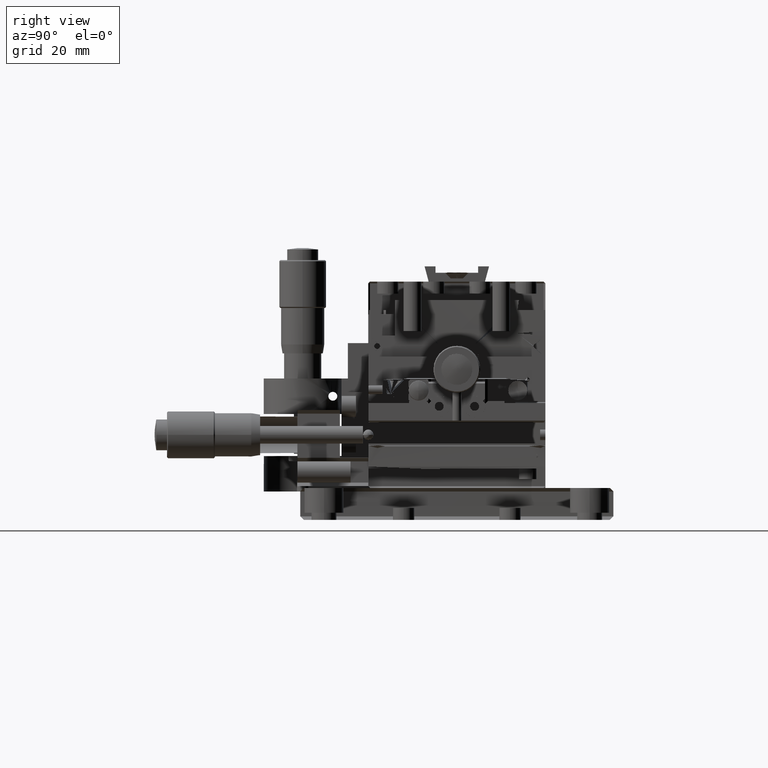
[diagram: clean part render]
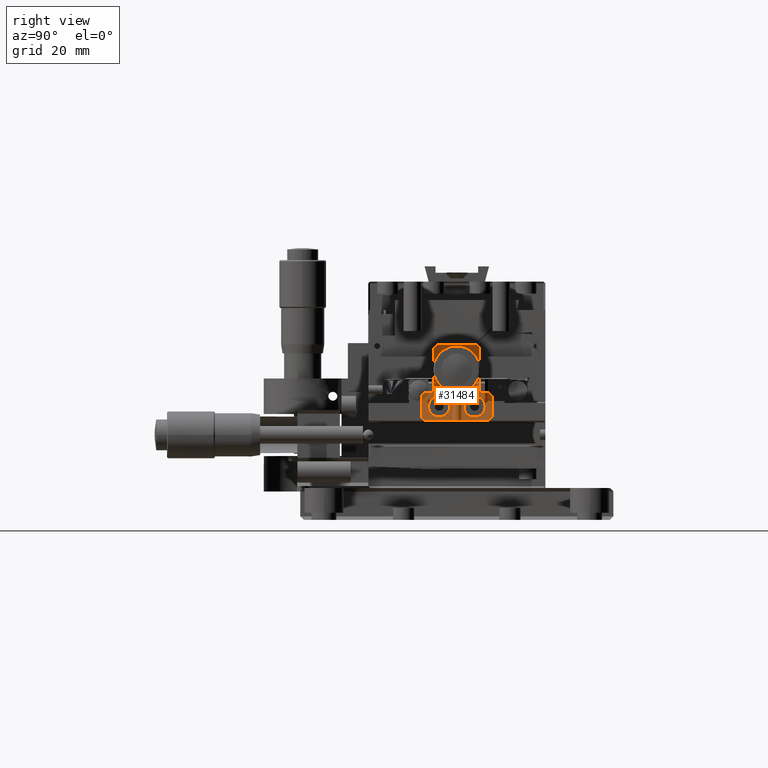
[diagram: same view with one face highlighted and labeled with its STEP entity id]
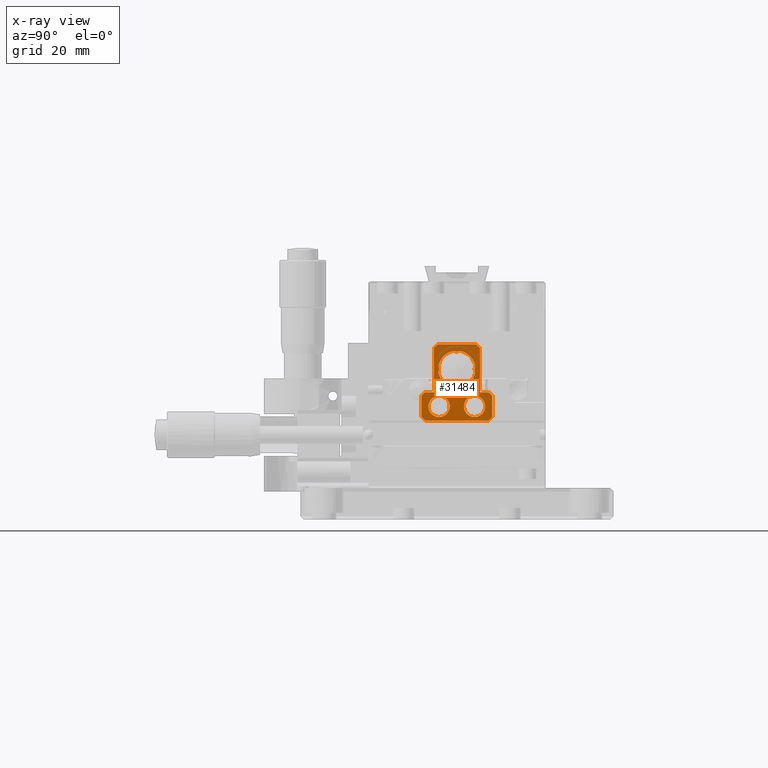
[diagram: x-ray of the same camera — body ghosted, the highlighted face saturated]
A machine part, right view. The second image highlights one B-rep face of the part: STEP entity #31484.
The next image is the same camera in x-ray: the body ghosted, the highlighted face saturated — about 27% of this face is hidden behind the body in this view.
In plain terms, the highlighted face is a freeform B-spline surface patch.
Its self-contained STEP definition (entity closure, byte-faithful):
#268 = B_SPLINE_CURVE_WITH_KNOTS ( 'NONE', 1,
 ( #7535, #10712 ),
 .UNSPECIFIED., .F., .F.,
 ( 2, 2 ),
 ( 0.000000000000000000, 1.000000000000000000 ),
 .UNSPECIFIED. ) ;
#425 = CARTESIAN_POINT ( 'NONE',  ( 55.41923232115960474, -7.999282571865960811, 27.07812786181560227 ) ) ;
#737 = EDGE_LOOP ( 'NONE', ( #13253, #18441 ) ) ;
#942 = CARTESIAN_POINT ( 'NONE',  ( 55.41923232115960474, -7.499282575016770203, 20.07815523999374818 ) ) ;
#1048 = CARTESIAN_POINT ( 'NONE',  ( 55.41923232115960474, -8.999282571865959923, 26.07812786181560227 ) ) ;
#1174 = CARTESIAN_POINT ( 'NONE',  ( 55.41923232115960474, 6.500717428134040077, 13.57812786181560050 ) ) ;
#1583 = CARTESIAN_POINT ( 'NONE',  ( 55.41923232115960474, -0.4992825718659559264, 9.578127861815600497 ) ) ;
#2019 = B_SPLINE_CURVE_WITH_KNOTS ( 'NONE', 1,
 ( #8632, #44208 ),
 .UNSPECIFIED., .F., .F.,
 ( 2, 2 ),
 ( 0.000000000000000000, 1.000000000000000000 ),
 .UNSPECIFIED. ) ;
#2088 = CARTESIAN_POINT ( 'NONE',  ( 55.41923232115960474, 5.500717428134040077, 9.578127861815600497 ) ) ;
#2198 = ORIENTED_EDGE ( 'NONE', *, *, #19940, .F. ) ;
#2590 = B_SPLINE_CURVE_WITH_KNOTS ( 'NONE', 1,
 ( #33611, #36755 ),
 .UNSPECIFIED., .F., .F.,
 ( 2, 2 ),
 ( 0.000000000000000000, 1.000000000000000000 ),
 .UNSPECIFIED. ) ;
#2881 = CARTESIAN_POINT ( 'NONE',  ( 55.41923232115960474, 2.750717428134039633, 20.07812786181559872 ) ) ;
#2954 = VERTEX_POINT ( 'NONE', #25672 ) ;
#3856 = EDGE_CURVE ( 'NONE', #23249, #31476, #27381, .T. ) ;
#3991 = CARTESIAN_POINT ( 'NONE',  ( 55.41923232115960474, -7.999282571865960811, 27.07812786181560227 ) ) ;
#4700 = CARTESIAN_POINT ( 'NONE',  ( 55.41923232115958342, -5.999282571865961700, 14.82812786181560405 ) ) ;
#5207 =( BOUNDED_CURVE ( )  B_SPLINE_CURVE ( 3, ( #41753, #28171, #10692, #24539 ),
 .UNSPECIFIED., .F., .F. ) 
 B_SPLINE_CURVE_WITH_KNOTS ( ( 4, 4 ),
 ( 0.000000000000000000, 1.000000000000000000 ),
 .UNSPECIFIED. ) 
 CURVE ( )  GEOMETRIC_REPRESENTATION_ITEM ( )  RATIONAL_B_SPLINE_CURVE ( ( 1.000000000000000000, 0.3333333333333329818, 0.3333333333333329818, 1.000000000000000000 ) ) 
 REPRESENTATION_ITEM ( '' )  );
#5702 = CARTESIAN_POINT ( 'NONE',  ( 55.41923232115960474, 3.000717428134029863, 27.07812786181560227 ) ) ;
#5775 = ORIENTED_EDGE ( 'NONE', *, *, #23377, .F. ) ;
#5938 = VERTEX_POINT ( 'NONE', #23898 ) ;
#6062 = CARTESIAN_POINT ( 'NONE',  ( 55.41923232115958342, -2.499282571865961255, 14.82812786181560405 ) ) ;
#6148 = FACE_OUTER_BOUND ( 'NONE', #39148, .T. ) ;
#6374 = CARTESIAN_POINT ( 'NONE',  ( 55.41923232115960474, -12.49928257186600078, 5.578127861815599609 ) ) ;
#6569 = CARTESIAN_POINT ( 'NONE',  ( 55.41923232115959053, -5.999282571865962588, 25.32812786181559872 ) ) ;
#7535 = CARTESIAN_POINT ( 'NONE',  ( 55.41923232115960474, 4.000717428134040077, 13.57812786181560050 ) ) ;
#7971 = CARTESIAN_POINT ( 'NONE',  ( 55.41923232115960474, 2.500717431284845027, 20.07810048363744926 ) ) ;
#8134 = CARTESIAN_POINT ( 'NONE',  ( 55.41923232115960474, 5.500717428134040077, 9.578127861815600497 ) ) ;
#8155 = EDGE_CURVE ( 'NONE', #20123, #12576, #2590, .T. ) ;
#8462 = CARTESIAN_POINT ( 'NONE',  ( 55.41923232115960474, 3.000717428134029863, 27.07812786181560227 ) ) ;
#8540 = ORIENTED_EDGE ( 'NONE', *, *, #11373, .F. ) ;
#8632 = CARTESIAN_POINT ( 'NONE',  ( 55.41923232115960474, 7.500717428134040077, 6.578127861815609378 ) ) ;
#9220 = CARTESIAN_POINT ( 'NONE',  ( 55.41923232115956210, 5.500717428134030307, 3.578127861815613819 ) ) ;
#9292 = CARTESIAN_POINT ( 'NONE',  ( 55.41923232115960474, -11.49928257186594038, 5.578127861815599609 ) ) ;
#9458 = CARTESIAN_POINT ( 'NONE',  ( 55.41923232115960474, -12.49928257186600078, 6.578127861815609378 ) ) ;
#9642 = CARTESIAN_POINT ( 'NONE',  ( 55.41923232115960474, 4.000717428134040077, 26.07812786181560227 ) ) ;
#9741 = EDGE_CURVE ( 'NONE', #27182, #14162, #21990, .T. ) ;
#9745 = CARTESIAN_POINT ( 'NONE',  ( 55.41923232115960474, 7.500717428134040077, 5.578127861815599609 ) ) ;
#9919 = CARTESIAN_POINT ( 'NONE',  ( 55.41923232115960474, -11.49928257186600078, 13.57812786181560050 ) ) ;
#9945 = CARTESIAN_POINT ( 'NONE',  ( 55.41923232115961184, -7.749282571865961700, 22.70312786181560227 ) ) ;
#10529 = VERTEX_POINT ( 'NONE', #31384 ) ;
#10614 = EDGE_CURVE ( 'NONE', #2954, #17161, #27532, .T. ) ;
#10692 = CARTESIAN_POINT ( 'NONE',  ( 55.41923232115956210, -4.499282571865959923, 15.57812786181559694 ) ) ;
#10712 = CARTESIAN_POINT ( 'NONE',  ( 55.41923232115960474, 4.000717428134040077, 26.07812786181560227 ) ) ;
#10873 = EDGE_CURVE ( 'NONE', #36618, #13635, #34326, .T. ) ;
#10893 = B_SPLINE_CURVE_WITH_KNOTS ( 'NONE', 1,
 ( #19788, #26359 ),
 .UNSPECIFIED., .F., .F.,
 ( 2, 2 ),
 ( -1.000000000000000000, 0.000000000000000000 ),
 .UNSPECIFIED. ) ;
#11373 = EDGE_CURVE ( 'NONE', #5938, #23249, #30005, .T. ) ;
#11643 = CARTESIAN_POINT ( 'NONE',  ( 55.41923232115960474, -8.999282571865959923, 13.57812786181560050 ) ) ;
#12170 = CARTESIAN_POINT ( 'NONE',  ( 55.41923232115958342, 1.000717428134039855, 14.82812786181560405 ) ) ;
#12576 = VERTEX_POINT ( 'NONE', #24778 ) ;
#12701 = FACE_BOUND ( 'NONE', #737, .T. ) ;
#13253 = ORIENTED_EDGE ( 'NONE', *, *, #28463, .F. ) ;
#13635 = VERTEX_POINT ( 'NONE', #9292 ) ;
#13716 =( BOUNDED_CURVE ( )  B_SPLINE_CURVE ( 3, ( #32542, #30443, #27039, #43580 ),
 .UNSPECIFIED., .F., .F. ) 
 B_SPLINE_CURVE_WITH_KNOTS ( ( 4, 4 ),
 ( 0.000000000000000000, 1.000000000000000000 ),
 .UNSPECIFIED. ) 
 CURVE ( )  GEOMETRIC_REPRESENTATION_ITEM ( )  RATIONAL_B_SPLINE_CURVE ( ( 1.000000000000000000, 0.3333333333333329818, 0.3333333333333329818, 1.000000000000000000 ) ) 
 REPRESENTATION_ITEM ( '' )  );
#13991 = CARTESIAN_POINT ( 'NONE',  ( 55.41923232115960474, 6.500717428134040077, 13.57812786181560050 ) ) ;
#14162 = VERTEX_POINT ( 'NONE', #29468 ) ;
#14716 = CARTESIAN_POINT ( 'NONE',  ( 55.41923232115960474, 6.500717428134029419, 5.578127861815609378 ) ) ;
#14856 = ORIENTED_EDGE ( 'NONE', *, *, #35187, .F. ) ;
#15785 = B_SPLINE_CURVE_WITH_KNOTS ( 'NONE', 1,
 ( #20883, #27231 ),
 .UNSPECIFIED., .F., .F.,
 ( 2, 2 ),
 ( 0.000000000000000000, 1.000000000000000000 ),
 .UNSPECIFIED. ) ;
#16742 = CARTESIAN_POINT ( 'NONE',  ( 55.41923232115960474, -7.749282571865959923, 20.07812786181559872 ) ) ;
#16990 = FACE_BOUND ( 'NONE', #38149, .T. ) ;
#17161 = VERTEX_POINT ( 'NONE', #2088 ) ;
#17167 = CARTESIAN_POINT ( 'NONE',  ( 55.41923232115960474, -12.49928257186600078, 12.57812786181559872 ) ) ;
#17672 = B_SPLINE_CURVE_WITH_KNOTS ( 'NONE', 1,
 ( #5702, #19524 ),
 .UNSPECIFIED., .F., .F.,
 ( 2, 2 ),
 ( -1.000000000000000000, 0.000000000000000000 ),
 .UNSPECIFIED. ) ;
#17890 = EDGE_CURVE ( 'NONE', #43300, #5938, #43018, .T. ) ;
#17896 = CARTESIAN_POINT ( 'NONE',  ( 55.41923232115960474, 7.500717428134040077, 12.57812786181559872 ) ) ;
#18092 =( BOUNDED_CURVE ( )  B_SPLINE_CURVE ( 3, ( #16742, #9945, #6569, #34209 ),
 .UNSPECIFIED., .F., .F. ) 
 B_SPLINE_CURVE_WITH_KNOTS ( ( 4, 4 ),
 ( 0.000000000000000000, 0.5000000000000000000 ),
 .UNSPECIFIED. ) 
 CURVE ( )  GEOMETRIC_REPRESENTATION_ITEM ( )  RATIONAL_B_SPLINE_CURVE ( ( 1.000000000000000000, 0.6666666666666665186, 0.4999999999999997780, 0.4999999999999997224 ) ) 
 REPRESENTATION_ITEM ( '' )  );
#18441 = ORIENTED_EDGE ( 'NONE', *, *, #19973, .F. ) ;
#18616 = ORIENTED_EDGE ( 'NONE', *, *, #26701, .F. ) ;
#18667 = CARTESIAN_POINT ( 'NONE',  ( 55.41923232115960474, -2.499282571865960367, 15.07812786181560050 ) ) ;
#18707 = EDGE_CURVE ( 'NONE', #30119, #43871, #40326, .T. ) ;
#19157 = ORIENTED_EDGE ( 'NONE', *, *, #3856, .F. ) ;
#19208 = ORIENTED_EDGE ( 'NONE', *, *, #41097, .F. ) ;
#19482 = EDGE_CURVE ( 'NONE', #26091, #42158, #18092, .T. ) ;
#19524 = CARTESIAN_POINT ( 'NONE',  ( 55.41923232115960474, -7.999282571865960811, 27.07812786181560227 ) ) ;
#19788 = CARTESIAN_POINT ( 'NONE',  ( 55.41923232115960474, 4.000717428134040077, 26.07812786181560227 ) ) ;
#19837 =( BOUNDED_CURVE ( )  B_SPLINE_CURVE ( 3, ( #25105, #4700, #24884, #35299 ),
 .UNSPECIFIED., .F., .F. ) 
 B_SPLINE_CURVE_WITH_KNOTS ( ( 4, 4 ),
 ( 0.5000000000000000000, 1.000000000000000000 ),
 .UNSPECIFIED. ) 
 CURVE ( )  GEOMETRIC_REPRESENTATION_ITEM ( )  RATIONAL_B_SPLINE_CURVE ( ( 0.4999999999999997780, 0.4999999999999997780, 0.6666666666666665186, 1.000000000000000000 ) ) 
 REPRESENTATION_ITEM ( '' )  );
#19940 = EDGE_CURVE ( 'NONE', #32032, #22151, #10893, .T. ) ;
#19973 = EDGE_CURVE ( 'NONE', #10529, #42845, #13716, .T. ) ;
#20123 = VERTEX_POINT ( 'NONE', #1174 ) ;
#20752 = CARTESIAN_POINT ( 'NONE',  ( 55.41923232115960474, -10.49928257186597946, 9.578127861815600497 ) ) ;
#20883 = CARTESIAN_POINT ( 'NONE',  ( 55.41923232115960474, -11.49928257186594038, 5.578127861815599609 ) ) ;
#21553 = EDGE_CURVE ( 'NONE', #43871, #26091, #19837, .T. ) ;
#21887 = CARTESIAN_POINT ( 'NONE',  ( 55.41923232115960474, -12.49928257186600078, 6.578127861815609378 ) ) ;
#21990 = B_SPLINE_CURVE_WITH_KNOTS ( 'NONE', 1,
 ( #14716, #36015 ),
 .UNSPECIFIED., .F., .F.,
 ( 2, 2 ),
 ( 0.000000000000000000, 1.000000000000000000 ),
 .UNSPECIFIED. ) ;
#22151 = VERTEX_POINT ( 'NONE', #8462 ) ;
#22638 = EDGE_CURVE ( 'NONE', #22151, #43300, #17672, .T. ) ;
#22720 = CARTESIAN_POINT ( 'NONE',  ( 55.41923232115960474, -12.49928257186600078, 12.57812786181559872 ) ) ;
#22754 = CARTESIAN_POINT ( 'NONE',  ( 55.41923232115960474, -8.999282571865959923, 13.57812786181560050 ) ) ;
#22869 = CARTESIAN_POINT ( 'NONE',  ( 55.41923232115956210, 5.500717428134030307, 15.57812786181559694 ) ) ;
#22896 = CARTESIAN_POINT ( 'NONE',  ( 55.41923232115960474, 2.750717428134039633, 20.07812786181559872 ) ) ;
#23052 = CARTESIAN_POINT ( 'NONE',  ( 55.41923232115956210, -0.4992825718659590351, 3.578127861815613819 ) ) ;
#23249 = VERTEX_POINT ( 'NONE', #22754 ) ;
#23377 = EDGE_CURVE ( 'NONE', #12576, #32032, #268, .T. ) ;
#23898 = CARTESIAN_POINT ( 'NONE',  ( 55.41923232115960474, -8.999282571865959923, 26.07812786181560227 ) ) ;
#23899 = ORIENTED_EDGE ( 'NONE', *, *, #19482, .F. ) ;
#23911 = B_SPLINE_SURFACE_WITH_KNOTS ( 'NONE', 1, 1, ( 
 ( #40784, #26549 ),
 ( #9745, #6374 ) ),
 .UNSPECIFIED., .F., .F., .F.,
 ( 2, 2 ),
 ( 2, 2 ),
 ( 0.000000000000000000, 1.000000000000000000 ),
 ( 0.000000000000000000, 1.000000000000000000 ),
 .UNSPECIFIED. ) ;
#24539 = CARTESIAN_POINT ( 'NONE',  ( 55.41923232115960474, -4.499282571865969693, 9.578127861815600497 ) ) ;
#24778 = CARTESIAN_POINT ( 'NONE',  ( 55.41923232115960474, 4.000717428134040077, 13.57812786181560050 ) ) ;
#24884 = CARTESIAN_POINT ( 'NONE',  ( 55.41923232115959053, -7.749282571865961700, 17.45312786181560227 ) ) ;
#25077 = EDGE_CURVE ( 'NONE', #13635, #27182, #15785, .T. ) ;
#25105 = CARTESIAN_POINT ( 'NONE',  ( 55.41923232115958342, -2.499282571865961255, 14.82812786181560405 ) ) ;
#25672 = CARTESIAN_POINT ( 'NONE',  ( 55.41923232115960474, -0.4992825718659559264, 9.578127861815600497 ) ) ;
#26091 = VERTEX_POINT ( 'NONE', #942 ) ;
#26359 = CARTESIAN_POINT ( 'NONE',  ( 55.41923232115960474, 3.000717428134029863, 27.07812786181560227 ) ) ;
#26537 = EDGE_CURVE ( 'NONE', #17161, #2954, #42009, .T. ) ;
#26549 = CARTESIAN_POINT ( 'NONE',  ( 55.41923232115960474, -12.49928257186600078, 27.07812786181560227 ) ) ;
#26701 = EDGE_CURVE ( 'NONE', #27116, #36618, #41235, .T. ) ;
#26924 = EDGE_LOOP ( 'NONE', ( #37226, #31097 ) ) ;
#27039 = CARTESIAN_POINT ( 'NONE',  ( 55.41923232115956210, -10.49928257186600433, 3.578127861815613819 ) ) ;
#27116 = VERTEX_POINT ( 'NONE', #40757 ) ;
#27182 = VERTEX_POINT ( 'NONE', #33981 ) ;
#27231 = CARTESIAN_POINT ( 'NONE',  ( 55.41923232115960474, 6.500717428134029419, 5.578127861815609378 ) ) ;
#27381 = B_SPLINE_CURVE_WITH_KNOTS ( 'NONE', 1,
 ( #37565, #29697 ),
 .UNSPECIFIED., .F., .F.,
 ( 2, 2 ),
 ( 0.000000000000000000, 1.000000000000000000 ),
 .UNSPECIFIED. ) ;
#27532 =( BOUNDED_CURVE ( )  B_SPLINE_CURVE ( 3, ( #1583, #29238, #22869, #8134 ),
 .UNSPECIFIED., .F., .F. ) 
 B_SPLINE_CURVE_WITH_KNOTS ( ( 4, 4 ),
 ( 0.000000000000000000, 1.000000000000000000 ),
 .UNSPECIFIED. ) 
 CURVE ( )  GEOMETRIC_REPRESENTATION_ITEM ( )  RATIONAL_B_SPLINE_CURVE ( ( 1.000000000000000000, 0.3333333333333329818, 0.3333333333333329818, 1.000000000000000000 ) ) 
 REPRESENTATION_ITEM ( '' )  );
#28171 = CARTESIAN_POINT ( 'NONE',  ( 55.41923232115956210, -10.49928257186600433, 15.57812786181559694 ) ) ;
#28463 = EDGE_CURVE ( 'NONE', #42845, #10529, #5207, .T. ) ;
#28767 = ORIENTED_EDGE ( 'NONE', *, *, #10873, .F. ) ;
#29238 = CARTESIAN_POINT ( 'NONE',  ( 55.41923232115956210, -0.4992825718659575363, 15.57812786181559694 ) ) ;
#29338 = CARTESIAN_POINT ( 'NONE',  ( 55.41923232115960474, -8.999282571865959923, 26.07812786181560227 ) ) ;
#29468 = CARTESIAN_POINT ( 'NONE',  ( 55.41923232115960474, 7.500717428134040077, 6.578127861815609378 ) ) ;
#29697 = CARTESIAN_POINT ( 'NONE',  ( 55.41923232115960474, -11.49928257186600078, 13.57812786181560050 ) ) ;
#29744 = VERTEX_POINT ( 'NONE', #17896 ) ;
#29989 = EDGE_CURVE ( 'NONE', #29744, #20123, #43695, .T. ) ;
#30005 = B_SPLINE_CURVE_WITH_KNOTS ( 'NONE', 1,
 ( #29338, #11643 ),
 .UNSPECIFIED., .F., .F.,
 ( 2, 2 ),
 ( 0.000000000000000000, 1.000000000000000000 ),
 .UNSPECIFIED. ) ;
#30119 = VERTEX_POINT ( 'NONE', #7971 ) ;
#30443 = CARTESIAN_POINT ( 'NONE',  ( 55.41923232115956210, -4.499282571865959923, 3.578127861815613819 ) ) ;
#30786 = CARTESIAN_POINT ( 'NONE',  ( 55.41923232115960474, -11.49928257186594038, 5.578127861815599609 ) ) ;
#31097 = ORIENTED_EDGE ( 'NONE', *, *, #26537, .F. ) ;
#31384 = CARTESIAN_POINT ( 'NONE',  ( 55.41923232115960474, -4.499282571865969693, 9.578127861815600497 ) ) ;
#31476 = VERTEX_POINT ( 'NONE', #37593 ) ;
#31484 = ADVANCED_FACE ( 'NONE', ( #16990, #40560, #12701, #6148 ), #23911, .T. ) ;
#31516 = CARTESIAN_POINT ( 'NONE',  ( 55.41923232115960474, -2.499282571865960367, 25.07812786181559872 ) ) ;
#31821 =( BOUNDED_CURVE ( )  B_SPLINE_CURVE ( 3, ( #43517, #40095, #44185, #22896 ),
 .UNSPECIFIED., .F., .F. ) 
 B_SPLINE_CURVE_WITH_KNOTS ( ( 4, 4 ),
 ( 0.5000000000000000000, 1.000000000000000000 ),
 .UNSPECIFIED. ) 
 CURVE ( )  GEOMETRIC_REPRESENTATION_ITEM ( )  RATIONAL_B_SPLINE_CURVE ( ( 0.4999999999999997224, 0.4999999999999996669, 0.6666666666666664076, 1.000000000000000000 ) ) 
 REPRESENTATION_ITEM ( '' )  );
#32032 = VERTEX_POINT ( 'NONE', #9642 ) ;
#32476 = CARTESIAN_POINT ( 'NONE',  ( 55.41923232115960474, -12.49928257186600078, 6.578127861815609378 ) ) ;
#32542 = CARTESIAN_POINT ( 'NONE',  ( 55.41923232115960474, -4.499282571865969693, 9.578127861815600497 ) ) ;
#33040 = CARTESIAN_POINT ( 'NONE',  ( 55.41923232115960474, 5.500717428134040077, 9.578127861815600497 ) ) ;
#33611 = CARTESIAN_POINT ( 'NONE',  ( 55.41923232115960474, 6.500717428134040077, 13.57812786181560050 ) ) ;
#33981 = CARTESIAN_POINT ( 'NONE',  ( 55.41923232115960474, 6.500717428134029419, 5.578127861815609378 ) ) ;
#34145 = ORIENTED_EDGE ( 'NONE', *, *, #22638, .F. ) ;
#34209 = CARTESIAN_POINT ( 'NONE',  ( 55.41923232115959053, -2.499282571865963476, 25.32812786181560583 ) ) ;
#34326 = B_SPLINE_CURVE_WITH_KNOTS ( 'NONE', 1,
 ( #9458, #30786 ),
 .UNSPECIFIED., .F., .F.,
 ( 2, 2 ),
 ( 0.000000000000000000, 1.000000000000000000 ),
 .UNSPECIFIED. ) ;
#34795 = ORIENTED_EDGE ( 'NONE', *, *, #25077, .F. ) ;
#35187 = EDGE_CURVE ( 'NONE', #31476, #27116, #37746, .T. ) ;
#35299 = CARTESIAN_POINT ( 'NONE',  ( 55.41923232115960474, -7.749282571865959923, 20.07812786181559872 ) ) ;
#35398 = ORIENTED_EDGE ( 'NONE', *, *, #29989, .F. ) ;
#35519 = CARTESIAN_POINT ( 'NONE',  ( 55.41923232115960474, 7.500717428134040077, 12.57812786181559872 ) ) ;
#35526 = EDGE_CURVE ( 'NONE', #14162, #29744, #2019, .T. ) ;
#36015 = CARTESIAN_POINT ( 'NONE',  ( 55.41923232115960474, 7.500717428134040077, 6.578127861815609378 ) ) ;
#36618 = VERTEX_POINT ( 'NONE', #21887 ) ;
#36620 = CARTESIAN_POINT ( 'NONE',  ( 55.41923232115960474, -0.4992825718659559264, 9.578127861815600497 ) ) ;
#36755 = CARTESIAN_POINT ( 'NONE',  ( 55.41923232115960474, 4.000717428134040077, 13.57812786181560050 ) ) ;
#37064 = CARTESIAN_POINT ( 'NONE',  ( 55.41923232115959053, 2.750717428134039633, 17.45312786181560227 ) ) ;
#37226 = ORIENTED_EDGE ( 'NONE', *, *, #10614, .F. ) ;
#37565 = CARTESIAN_POINT ( 'NONE',  ( 55.41923232115960474, -8.999282571865959923, 13.57812786181560050 ) ) ;
#37593 = CARTESIAN_POINT ( 'NONE',  ( 55.41923232115960474, -11.49928257186600078, 13.57812786181560050 ) ) ;
#37746 = B_SPLINE_CURVE_WITH_KNOTS ( 'NONE', 1,
 ( #9919, #17167 ),
 .UNSPECIFIED., .F., .F.,
 ( 2, 2 ),
 ( 0.000000000000000000, 1.000000000000000000 ),
 .UNSPECIFIED. ) ;
#38149 = EDGE_LOOP ( 'NONE', ( #44772, #44124, #19208, #23899 ) ) ;
#39086 = ORIENTED_EDGE ( 'NONE', *, *, #17890, .F. ) ;
#39148 = EDGE_LOOP ( 'NONE', ( #40472, #41602, #34795, #28767, #18616, #14856, #19157, #8540, #39086, #34145, #2198, #5775, #44572, #35398 ) ) ;
#40095 = CARTESIAN_POINT ( 'NONE',  ( 55.41923232115957632, 1.000717428134038745, 25.32812786181560583 ) ) ;
#40326 =( BOUNDED_CURVE ( )  B_SPLINE_CURVE ( 3, ( #2881, #37064, #12170, #6062 ),
 .UNSPECIFIED., .F., .F. ) 
 B_SPLINE_CURVE_WITH_KNOTS ( ( 4, 4 ),
 ( 0.000000000000000000, 0.5000000000000000000 ),
 .UNSPECIFIED. ) 
 CURVE ( )  GEOMETRIC_REPRESENTATION_ITEM ( )  RATIONAL_B_SPLINE_CURVE ( ( 1.000000000000000000, 0.6666666666666665186, 0.4999999999999997780, 0.4999999999999997780 ) ) 
 REPRESENTATION_ITEM ( '' )  );
#40472 = ORIENTED_EDGE ( 'NONE', *, *, #35526, .F. ) ;
#40560 = FACE_BOUND ( 'NONE', #26924, .T. ) ;
#40757 = CARTESIAN_POINT ( 'NONE',  ( 55.41923232115960474, -12.49928257186600078, 12.57812786181559872 ) ) ;
#40784 = CARTESIAN_POINT ( 'NONE',  ( 55.41923232115960474, 7.500717428134040077, 27.07812786181560227 ) ) ;
#41097 = EDGE_CURVE ( 'NONE', #42158, #30119, #31821, .T. ) ;
#41235 = B_SPLINE_CURVE_WITH_KNOTS ( 'NONE', 1,
 ( #22720, #32476 ),
 .UNSPECIFIED., .F., .F.,
 ( 2, 2 ),
 ( 0.000000000000000000, 1.000000000000000000 ),
 .UNSPECIFIED. ) ;
#41602 = ORIENTED_EDGE ( 'NONE', *, *, #9741, .F. ) ;
#41753 = CARTESIAN_POINT ( 'NONE',  ( 55.41923232115960474, -10.49928257186597946, 9.578127861815600497 ) ) ;
#42009 =( BOUNDED_CURVE ( )  B_SPLINE_CURVE ( 3, ( #33040, #9220, #23052, #36620 ),
 .UNSPECIFIED., .F., .F. ) 
 B_SPLINE_CURVE_WITH_KNOTS ( ( 4, 4 ),
 ( 0.000000000000000000, 1.000000000000000000 ),
 .UNSPECIFIED. ) 
 CURVE ( )  GEOMETRIC_REPRESENTATION_ITEM ( )  RATIONAL_B_SPLINE_CURVE ( ( 1.000000000000000000, 0.3333333333333329818, 0.3333333333333329818, 1.000000000000000000 ) ) 
 REPRESENTATION_ITEM ( '' )  );
#42158 = VERTEX_POINT ( 'NONE', #31516 ) ;
#42845 = VERTEX_POINT ( 'NONE', #20752 ) ;
#43018 = B_SPLINE_CURVE_WITH_KNOTS ( 'NONE', 1,
 ( #3991, #1048 ),
 .UNSPECIFIED., .F., .F.,
 ( 2, 2 ),
 ( -1.000000000000000000, 0.000000000000000000 ),
 .UNSPECIFIED. ) ;
#43300 = VERTEX_POINT ( 'NONE', #425 ) ;
#43517 = CARTESIAN_POINT ( 'NONE',  ( 55.41923232115959053, -2.499282571865963476, 25.32812786181560583 ) ) ;
#43580 = CARTESIAN_POINT ( 'NONE',  ( 55.41923232115960474, -10.49928257186597946, 9.578127861815600497 ) ) ;
#43695 = B_SPLINE_CURVE_WITH_KNOTS ( 'NONE', 1,
 ( #35519, #13991 ),
 .UNSPECIFIED., .F., .F.,
 ( 2, 2 ),
 ( 0.000000000000000000, 1.000000000000000000 ),
 .UNSPECIFIED. ) ;
#43871 = VERTEX_POINT ( 'NONE', #18667 ) ;
#44124 = ORIENTED_EDGE ( 'NONE', *, *, #18707, .F. ) ;
#44185 = CARTESIAN_POINT ( 'NONE',  ( 55.41923232115961184, 2.750717428134039633, 22.70312786181560583 ) ) ;
#44208 = CARTESIAN_POINT ( 'NONE',  ( 55.41923232115960474, 7.500717428134040077, 12.57812786181559872 ) ) ;
#44572 = ORIENTED_EDGE ( 'NONE', *, *, #8155, .F. ) ;
#44772 = ORIENTED_EDGE ( 'NONE', *, *, #21553, .F. ) ;